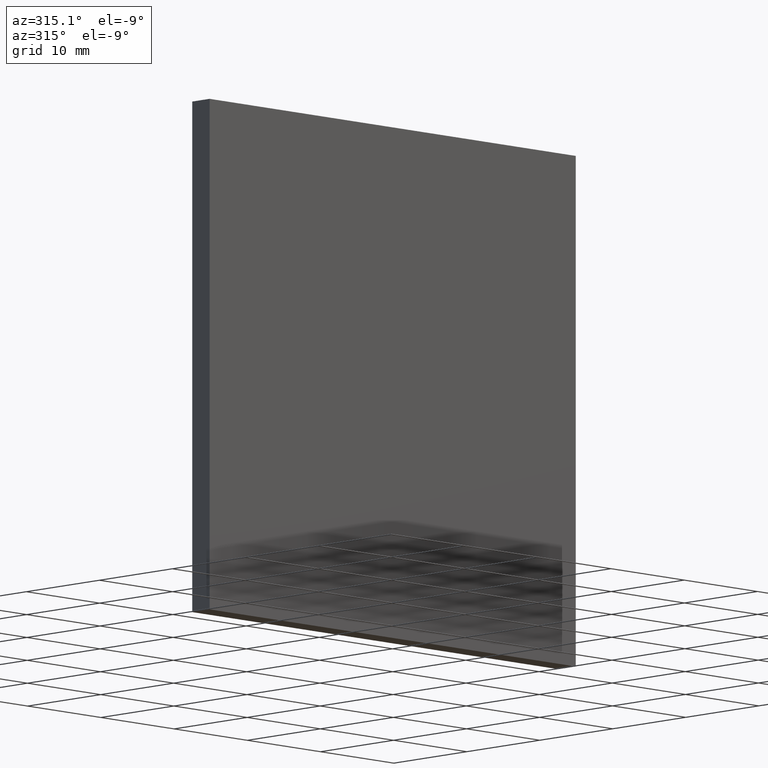
[diagram: clean part render]
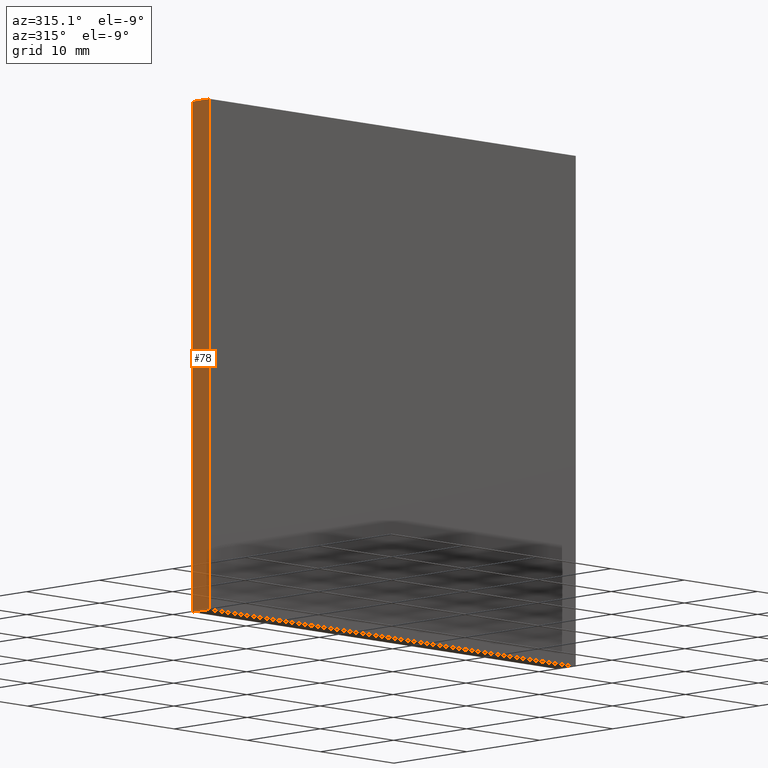
[diagram: same view with one face highlighted and labeled with its STEP entity id]
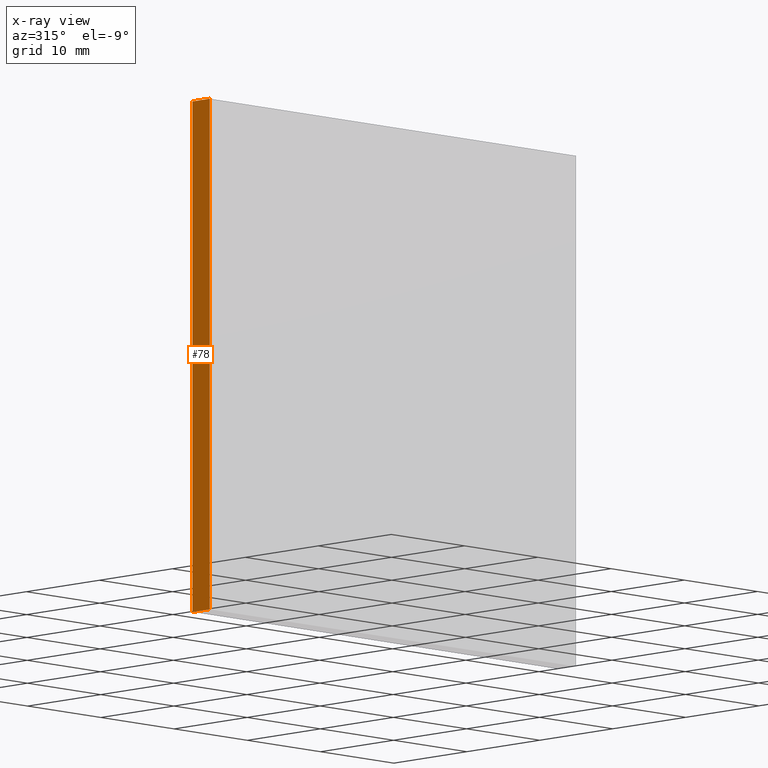
[diagram: x-ray of the same camera — body ghosted, the highlighted face saturated]
A machine part, auxiliary view. The second image highlights one B-rep face of the part: STEP entity #78.
The next image is the same camera in x-ray: the body ghosted, the highlighted face saturated — about 0% of this face is hidden behind the body in this view.
In plain terms, the highlighted planar face has unit normal (1, -0, 0).
Its self-contained STEP definition (entity closure, byte-faithful):
#11 = VERTEX_POINT ( 'NONE', #141 ) ;
#13 = EDGE_CURVE ( 'NONE', #107, #34, #26, .T. ) ;
#20 = DIRECTION ( 'NONE',  ( -0.0000000000000000000, -1.000000000000000000, -0.0000000000000000000 ) ) ;
#22 = EDGE_CURVE ( 'NONE', #39, #11, #118, .T. ) ;
#26 = LINE ( 'NONE', #85, #48 ) ;
#27 = DIRECTION ( 'NONE',  ( -0.0000000000000000000, -0.0000000000000000000, 1.000000000000000000 ) ) ;
#28 = ORIENTED_EDGE ( 'NONE', *, *, #13, .T. ) ;
#34 = VERTEX_POINT ( 'NONE', #51 ) ;
#35 = PLANE ( 'NONE',  #121 ) ;
#39 = VERTEX_POINT ( 'NONE', #152 ) ;
#43 = EDGE_LOOP ( 'NONE', ( #28, #77, #75, #50 ) ) ;
#48 = VECTOR ( 'NONE', #27, 1000.000000000000000 ) ;
#50 = ORIENTED_EDGE ( 'NONE', *, *, #143, .T. ) ;
#51 = CARTESIAN_POINT ( 'NONE',  ( -25.00000000000000000, 0.0000000000000000000, 24.99999999999999600 ) ) ;
#57 = VECTOR ( 'NONE', #20, 1000.000000000000000 ) ;
#61 = CARTESIAN_POINT ( 'NONE',  ( -25.00000000000000000, 0.0000000000000000000, -25.00000000000000400 ) ) ;
#63 = CARTESIAN_POINT ( 'NONE',  ( -25.00000000000000000, 2.370000000000000100, 24.99999999999999600 ) ) ;
#75 = ORIENTED_EDGE ( 'NONE', *, *, #22, .F. ) ;
#76 = DIRECTION ( 'NONE',  ( -0.0000000000000000000, -0.0000000000000000000, 1.000000000000000000 ) ) ;
#77 = ORIENTED_EDGE ( 'NONE', *, *, #127, .F. ) ;
#78 = ADVANCED_FACE ( 'NONE', ( #99 ), #35, .F. ) ;
#84 = VECTOR ( 'NONE', #76, 1000.000000000000000 ) ;
#85 = CARTESIAN_POINT ( 'NONE',  ( -25.00000000000000000, 0.0000000000000000000, 24.99999999999999600 ) ) ;
#89 = DIRECTION ( 'NONE',  ( 0.0000000000000000000, 0.0000000000000000000, -1.000000000000000000 ) ) ;
#99 = FACE_OUTER_BOUND ( 'NONE', #43, .T. ) ;
#101 = DIRECTION ( 'NONE',  ( -0.0000000000000000000, -1.000000000000000000, -0.0000000000000000000 ) ) ;
#106 = DIRECTION ( 'NONE',  ( 1.000000000000000000, -0.0000000000000000000, 0.0000000000000000000 ) ) ;
#107 = VERTEX_POINT ( 'NONE', #61 ) ;
#118 = LINE ( 'NONE', #63, #84 ) ;
#121 = AXIS2_PLACEMENT_3D ( 'NONE', #123, #106, #89 ) ;
#123 = CARTESIAN_POINT ( 'NONE',  ( -25.00000000000000000, 2.370000000000000100, 24.99999999999999600 ) ) ;
#127 = EDGE_CURVE ( 'NONE', #11, #34, #168, .T. ) ;
#132 = CARTESIAN_POINT ( 'NONE',  ( -25.00000000000000000, 2.370000000000000100, -25.00000000000000400 ) ) ;
#140 = LINE ( 'NONE', #132, #57 ) ;
#141 = CARTESIAN_POINT ( 'NONE',  ( -25.00000000000000000, 2.370000000000000100, 24.99999999999999600 ) ) ;
#143 = EDGE_CURVE ( 'NONE', #39, #107, #140, .T. ) ;
#152 = CARTESIAN_POINT ( 'NONE',  ( -25.00000000000000000, 2.370000000000000100, -25.00000000000000400 ) ) ;
#168 = LINE ( 'NONE', #169, #172 ) ;
#169 = CARTESIAN_POINT ( 'NONE',  ( -25.00000000000000000, 2.370000000000000100, 24.99999999999999600 ) ) ;
#172 = VECTOR ( 'NONE', #101, 1000.000000000000000 ) ;